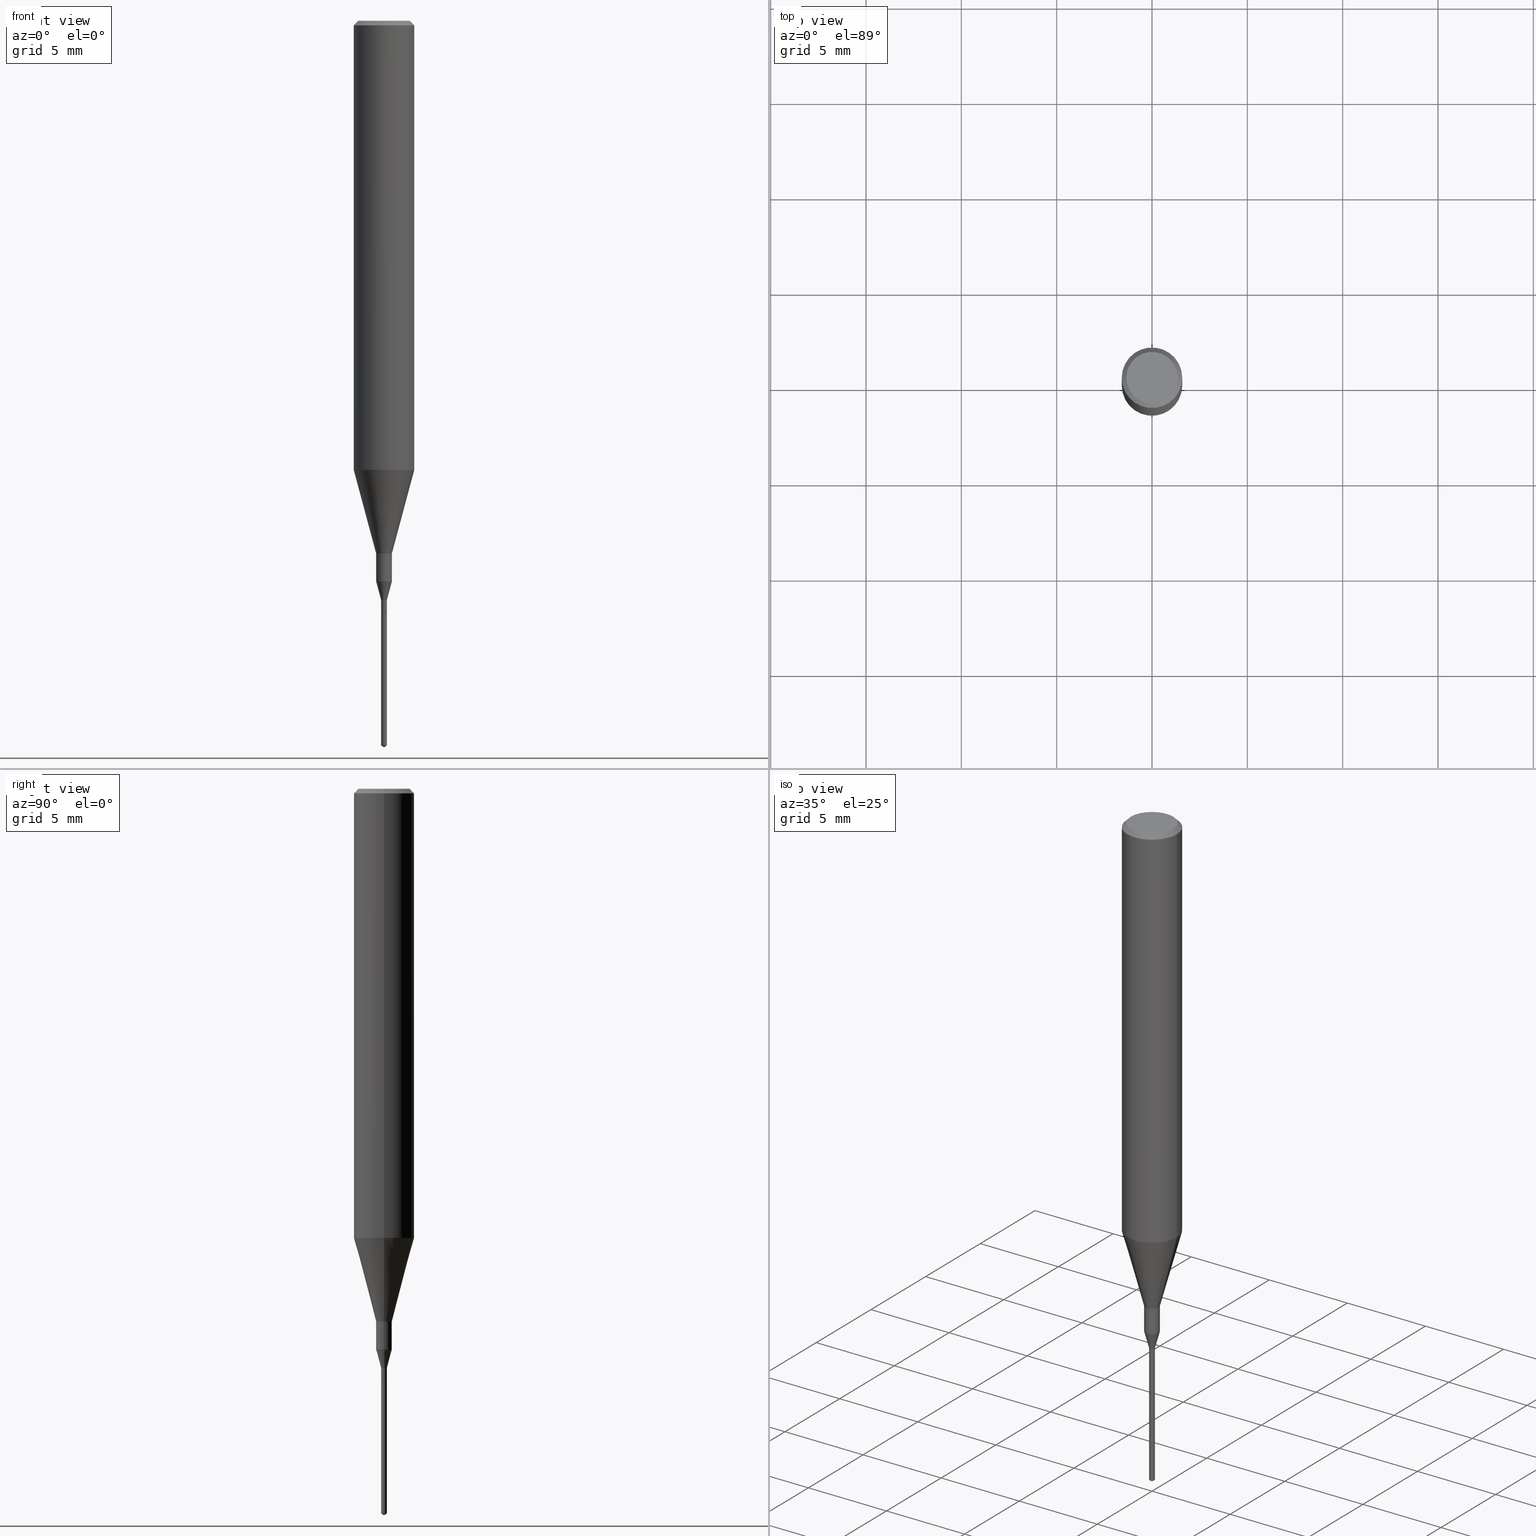
[diagram: canonical four-view strip — front | top / right | iso, engineering-drawing reading convention]
A machine part, canonical four-view strip (front | top / right | iso — engineering-drawing reading convention). The complete STEP part file that produces these views, byte-faithful:
ISO-10303-21;
HEADER;
FILE_DESCRIPTION (( 'STEP AP203' ),
    '1' );
FILE_NAME ('07134.STEP',
    '2024-04-19T13:30:09',
    ( '' ),
    ( '' ),
    'SwSTEP 2.0',
    'SolidWorks 2023',
    '' );
FILE_SCHEMA (( 'CONFIG_CONTROL_DESIGN' ));
ENDSEC;

DATA;
#1 = ORIENTED_EDGE ( 'NONE', *, *, #408, .T. ) ;
#2 = EDGE_CURVE ( 'NONE', #30, #68, #262, .T. ) ;
#3 = CARTESIAN_POINT ( 'NONE',  ( 2.292627005798582813E-31, -3.273263755165473266E-17, -0.009375000000000069042 ) ) ;
#4 = CARTESIAN_POINT ( 'NONE',  ( 0.06250000000000005551, -4.364351673553920638E-16, 3.047610484872462323E-30 ) ) ;
#5 = CARTESIAN_POINT ( 'NONE',  ( 0.000000000000000000, 0.000000000000000000, 0.000000000000000000 ) ) ;
#6 = LINE ( 'NONE', #506, #581 ) ;
#7 = AXIS2_PLACEMENT_3D ( 'NONE', #402, #67, #529 ) ;
#8 = EDGE_CURVE ( 'NONE', #489, #369, #144, .T. ) ;
#9 = LINE ( 'NONE', #56, #107 ) ;
#10 = CARTESIAN_POINT ( 'NONE',  ( 1.415359278996747967E-46, -2.020757941330909984E-32, -5.787680772770392401E-18 ) ) ;
#11 = DATE_TIME_ROLE ( 'creation_date' ) ;
#12 = DIRECTION ( 'NONE',  ( -2.445468806185136597E-29, 3.491481338843145583E-15, 1.000000000000000000 ) ) ;
#13 = DIRECTION ( 'NONE',  ( -2.445468806185136877E-29, 3.491481338843145188E-15, 1.000000000000000000 ) ) ;
#14 = AXIS2_PLACEMENT_3D ( 'NONE', #141, #181, #375 ) ;
#15 = CARTESIAN_POINT ( 'NONE',  ( -9.270139609322808128E-28, 1.320919266452738465E-13, 37.87007874015748143 ) ) ;
#16 = CARTESIAN_POINT ( 'NONE',  ( -0.01625000000000000056, -3.926880586715927397E-15, -1.157773274141662201 ) ) ;
#17 =( NAMED_UNIT ( * ) PLANE_ANGLE_UNIT ( ) SI_UNIT ( $, .RADIAN. ) );
#18 = ORIENTED_EDGE ( 'NONE', *, *, #359, .F. ) ;
#19 = EDGE_CURVE ( 'NONE', #393, #256, #87, .T. ) ;
#20 = DIRECTION ( 'NONE',  ( -2.445468806185136597E-29, 3.491481338843145583E-15, 1.000000000000000000 ) ) ;
#21 = VERTEX_POINT ( 'NONE', #37 ) ;
#22 = EDGE_CURVE ( 'NONE', #296, #68, #51, .T. ) ;
#23 = CALENDAR_DATE ( 2024, 19, 4 ) ;
#24 = EDGE_LOOP ( 'NONE', ( #259, #210, #442, #127 ) ) ;
#25 = ADVANCED_BREP_SHAPE_REPRESENTATION ( '07134', ( #322, #113, #77 ), #572 ) ;
#26 = DIRECTION ( 'NONE',  ( -2.438088387897960049E-29, 3.491481338843145188E-15, 1.000000000000000000 ) ) ;
#27 = ORIENTED_EDGE ( 'NONE', *, *, #576, .F. ) ;
#28 = ADVANCED_FACE ( 'NONE', ( #503 ), #134, .T. ) ;
#29 = CARTESIAN_POINT ( 'NONE',  ( -0.06250000000000000000, -1.191264174815165938E-15, -0.009375000000000069042 ) ) ;
#30 = VERTEX_POINT ( 'NONE', #497 ) ;
#31 = COORDINATED_UNIVERSAL_TIME_OFFSET ( 5, 0, .BEHIND. ) ;
#32 = CARTESIAN_POINT ( 'NONE',  ( 2.983471943545866670E-29, -4.259607233388637524E-15, -1.220000000000000195 ) ) ;
#33 = EDGE_LOOP ( 'NONE', ( #154, #451, #346, #565 ) ) ;
#34 = CARTESIAN_POINT ( 'NONE',  ( -4.119947979831912837E-17, -0.005900000000004259476, -1.220000000000000195 ) ) ;
#35 = ORIENTED_EDGE ( 'NONE', *, *, #464, .T. ) ;
#36 = ADVANCED_FACE ( 'NONE', ( #505 ), #550, .T. ) ;
#37 = CARTESIAN_POINT ( 'NONE',  ( 0.01624999999999999709, -3.954102616239861778E-15, -1.100000000000000089 ) ) ;
#38 = CARTESIAN_POINT ( 'NONE',  ( 2.983471943545866670E-29, -4.259607233388637524E-15, -1.220000000000000195 ) ) ;
#39 = ORIENTED_EDGE ( 'NONE', *, *, #318, .T. ) ;
#40 = FACE_OUTER_BOUND ( 'NONE', #321, .T. ) ;
#41 = ADVANCED_FACE ( 'NONE', ( #93 ), #391, .T. ) ;
#42 = ORIENTED_EDGE ( 'NONE', *, *, #65, .T. ) ;
#43 = CONICAL_SURFACE ( 'NONE', #64, 0.06250000000000000000, 0.7853981633974450594 ) ;
#44 = CC_DESIGN_APPROVAL ( #85, ( #532 ) ) ;
#45 = LINE ( 'NONE', #4, #57 ) ;
#46 = CARTESIAN_POINT ( 'NONE',  ( 2.983471943545866670E-29, -4.259607233388637524E-15, -1.220000000000000195 ) ) ;
#47 = CIRCLE ( 'NONE', #387, 0.005899999999999993791 ) ;
#48 = DIRECTION ( 'NONE',  ( -2.447804433263427602E-29, 3.488136587931395429E-15, 1.000000000000000000 ) ) ;
#49 = DIRECTION ( 'NONE',  ( 1.000000000000000000, -6.982962677686258033E-15, 0.000000000000000000 ) ) ;
#50 = VECTOR ( 'NONE', #13, 39.37007874015748143 ) ;
#51 = CIRCLE ( 'NONE', #241, 0.005900000000000031088 ) ;
#52 = EDGE_CURVE ( 'NONE', #585, #342, #540, .T. ) ;
#53 = CLOSED_SHELL ( 'NONE', ( #230, #254, #436, #282, #41, #195, #164, #491, #305, #520, #257, #562, #28, #152, #36, #362 ) ) ;
#54 = CYLINDRICAL_SURFACE ( 'NONE', #170, 0.005899999999999998995 ) ;
#55 = DIRECTION ( 'NONE',  ( 2.445468806185136597E-29, -3.491481338843145583E-15, -1.000000000000000000 ) ) ;
#56 = CARTESIAN_POINT ( 'NONE',  ( -0.06250000000000000000, 4.037025298037369491E-16, -0.009375000000000069042 ) ) ;
#57 = VECTOR ( 'NONE', #183, 39.37007874015748143 ) ;
#58 = CARTESIAN_POINT ( 'NONE',  ( -4.119947979831236759E-17, -0.005900000000005223115, -1.496454922347737471 ) ) ;
#59 = DIRECTION ( 'NONE',  ( -2.445468806185136877E-29, 3.491481338843145188E-15, 1.000000000000000000 ) ) ;
#60 = DIRECTION ( 'NONE',  ( 0.2588190451025204619, 1.565188264969629067E-15, 0.9659258262890684232 ) ) ;
#61 = CARTESIAN_POINT ( 'NONE',  ( 0.000000000000000000, 0.000000000000000000, 0.000000000000000000 ) ) ;
#62 = DIRECTION ( 'NONE',  ( -0.2588190451025204619, 5.211531920934543942E-15, 0.9659258262890684232 ) ) ;
#63 = ORIENTED_EDGE ( 'NONE', *, *, #198, .T. ) ;
#64 = AXIS2_PLACEMENT_3D ( 'NONE', #430, #55, #293 ) ;
#65 = EDGE_CURVE ( 'NONE', #256, #296, #91, .T. ) ;
#66 = ORIENTED_EDGE ( 'NONE', *, *, #149, .T. ) ;
#67 = DIRECTION ( 'NONE',  ( -2.447804433263427602E-29, 3.488136587931395429E-15, 1.000000000000000000 ) ) ;
#68 = VERTEX_POINT ( 'NONE', #545 ) ;
#69 = VECTOR ( 'NONE', #217, 39.37007874015748143 ) ;
#70 = VERTEX_POINT ( 'NONE', #461 ) ;
#71 = EDGE_CURVE ( 'NONE', #585, #399, #9, .T. ) ;
#72 = CONICAL_SURFACE ( 'NONE', #480, 0.06250000000000011102, 0.2617993877991501850 ) ;
#73 = ORIENTED_EDGE ( 'NONE', *, *, #71, .F. ) ;
#74 = APPROVAL_DATE_TIME ( #573, #85 ) ;
#75 = CARTESIAN_POINT ( 'NONE',  ( -0.005400000000000000286, -4.218588698483481194E-15, -1.220000000000000195 ) ) ;
#76 = ORIENTED_EDGE ( 'NONE', *, *, #209, .F. ) ;
#77 = AXIS2_PLACEMENT_3D ( 'NONE', #61, #341, #512 ) ;
#78 = DIRECTION ( 'NONE',  ( 1.000000000000000000, -6.982962677686306942E-15, 0.000000000000000000 ) ) ;
#79 = EDGE_CURVE ( 'NONE', #70, #309, #239, .T. ) ;
#80 = ORIENTED_EDGE ( 'NONE', *, *, #570, .T. ) ;
#81 = CARTESIAN_POINT ( 'NONE',  ( 0.005400000000000000286, -4.297315231848143579E-15, -1.220000000000000195 ) ) ;
#82 = VECTOR ( 'NONE', #165, 39.37007874015748143 ) ;
#83 = ORIENTED_EDGE ( 'NONE', *, *, #2, .T. ) ;
#84 = FACE_OUTER_BOUND ( 'NONE', #538, .T. ) ;
#85 = APPROVAL ( #286, 'UNSPECIFIED' ) ;
#86 = CARTESIAN_POINT ( 'NONE',  ( -0.06250000000000011102, -2.793884921928740709E-15, -0.9273926501499395458 ) ) ;
#87 = LINE ( 'NONE', #81, #306 ) ;
#88 = CARTESIAN_POINT ( 'NONE',  ( -4.119947979831913453E-17, -0.005900000000004260343, -1.220000000000000195 ) ) ;
#89 = AXIS2_PLACEMENT_3D ( 'NONE', #425, #188, #184 ) ;
#90 = CARTESIAN_POINT ( 'NONE',  ( 2.831298426548267629E-29, -4.042343781276943582E-15, -1.157773274141662201 ) ) ;
#91 = LINE ( 'NONE', #228, #125 ) ;
#92 = DIRECTION ( 'NONE',  ( -2.445468806185136597E-29, 3.491481338843145583E-15, 1.000000000000000000 ) ) ;
#93 = FACE_OUTER_BOUND ( 'NONE', #161, .T. ) ;
#94 = CARTESIAN_POINT ( 'NONE',  ( 2.983471943545866670E-29, -4.259607233388637524E-15, -1.220000000000000195 ) ) ;
#95 = CC_DESIGN_PERSON_AND_ORGANIZATION_ASSIGNMENT ( #556, #103, ( #353 ) ) ;
#96 = CIRCLE ( 'NONE', #89, 0.06250000000000011102 ) ;
#97 = AXIS2_PLACEMENT_3D ( 'NONE', #323, #168, #490 ) ;
#98 = DIRECTION ( 'NONE',  ( 1.000000000000000000, -6.982962677686258033E-15, 0.000000000000000000 ) ) ;
#99 = FACE_OUTER_BOUND ( 'NONE', #433, .T. ) ;
#100 = CARTESIAN_POINT ( 'NONE',  ( 4.192202140987573263E-17, 0.005899999999995739382, -1.220000000000000195 ) ) ;
#101 = CARTESIAN_POINT ( 'NONE',  ( 0.06250000000000011102, -3.674409299134196572E-15, -0.9273926501499395458 ) ) ;
#102 = APPROVAL ( #316, 'UNSPECIFIED' ) ;
#103 = PERSON_AND_ORGANIZATION_ROLE ( 'design_owner' ) ;
#104 = DIRECTION ( 'NONE',  ( -2.445468806185136877E-29, 3.491481338843145188E-15, 1.000000000000000000 ) ) ;
#105 = DESIGN_CONTEXT ( 'detailed design', #124, 'design' ) ;
#106 = DIRECTION ( 'NONE',  ( -2.445468806185136597E-29, 3.491481338843145583E-15, 1.000000000000000000 ) ) ;
#107 = VECTOR ( 'NONE', #500, 39.37007874015748143 ) ;
#108 = ORIENTED_EDGE ( 'NONE', *, *, #19, .T. ) ;
#109 = COORDINATED_UNIVERSAL_TIME_OFFSET ( 5, 0, .BEHIND. ) ;
#110 = AXIS2_PLACEMENT_3D ( 'NONE', #354, #443, #350 ) ;
#111 = ORIENTED_EDGE ( 'NONE', *, *, #295, .T. ) ;
#112 = ADVANCED_FACE ( 'NONE', ( #186 ), #54, .T. ) ;
#113 = MANIFOLD_SOLID_BREP ( 'Body-Move/Copy2[2]', #53 ) ;
#114 = APPROVAL_DATE_TIME ( #392, #587 ) ;
#115 = CARTESIAN_POINT ( 'NONE',  ( 4.192202140988254888E-17, 0.005899999999995740249, -1.220000000000000195 ) ) ;
#116 = ORIENTED_EDGE ( 'NONE', *, *, #577, .T. ) ;
#117 = FACE_OUTER_BOUND ( 'NONE', #531, .T. ) ;
#118 = ORIENTED_EDGE ( 'NONE', *, *, #385, .T. ) ;
#119 = APPROVAL_DATE_TIME ( #519, #102 ) ;
#120 = ORIENTED_EDGE ( 'NONE', *, *, #8, .F. ) ;
#121 = CC_DESIGN_DATE_AND_TIME_ASSIGNMENT ( #176, #413, ( #386 ) ) ;
#122 = VERTEX_POINT ( 'NONE', #237 ) ;
#123 = LOCAL_TIME ( 9, 30, 9.000000000000000000, #109 ) ;
#124 = APPLICATION_CONTEXT ( 'configuration controlled 3d designs of mechanical parts and assemblies' ) ;
#125 = VECTOR ( 'NONE', #59, 39.37007874015748143 ) ;
#126 = ORIENTED_EDGE ( 'NONE', *, *, #444, .F. ) ;
#127 = ORIENTED_EDGE ( 'NONE', *, *, #515, .F. ) ;
#128 = PERSON ( 'UNSPECIFIED', 'UNSPECIFIED', 'UNSPECIFIED', ('UNSPECIFIED'), ('UNSPECIFIED'), ('UNSPECIFIED') ) ;
#129 = CYLINDRICAL_SURFACE ( 'NONE', #153, 0.01624999999999999709 ) ;
#130 = ORIENTED_EDGE ( 'NONE', *, *, #401, .T. ) ;
#131 = EDGE_CURVE ( 'NONE', #207, #528, #96, .T. ) ;
#132 = DIRECTION ( 'NONE',  ( 1.000000000000000000, -6.982962677686296687E-15, 0.000000000000000000 ) ) ;
#133 = DIRECTION ( 'NONE',  ( 1.000000000000000000, -6.982962677686259611E-15, 0.000000000000000000 ) ) ;
#134 = CONICAL_SURFACE ( 'NONE', #398, 0.06250000000000011102, 0.2617993877991501850 ) ;
#135 = DIRECTION ( 'NONE',  ( -2.445468806185136597E-29, 3.491481338843145583E-15, 1.000000000000000000 ) ) ;
#136 = VECTOR ( 'NONE', #487, 39.37007874015748143 ) ;
#137 = VECTOR ( 'NONE', #48, 39.37007874015748143 ) ;
#138 = LINE ( 'NONE', #467, #468 ) ;
#139 = ADVANCED_FACE ( 'NONE', ( #192 ), #431, .T. ) ;
#140 = DIRECTION ( 'NONE',  ( -2.445468806185136597E-29, 3.491481338843145583E-15, 1.000000000000000000 ) ) ;
#141 = CARTESIAN_POINT ( 'NONE',  ( 2.983471943545866670E-29, -4.259607233388637524E-15, -1.220000000000000195 ) ) ;
#142 = CARTESIAN_POINT ( 'NONE',  ( 2.267909797027042920E-29, -3.237974131778804114E-15, -0.9273926501499395458 ) ) ;
#143 = LINE ( 'NONE', #334, #276 ) ;
#144 = CIRCLE ( 'NONE', #97, 0.005900000000000000730 ) ;
#145 = DATE_AND_TIME ( #423, #199 ) ;
#146 = CYLINDRICAL_SURFACE ( 'NONE', #481, 0.06250000000000005551 ) ;
#147 = FACE_OUTER_BOUND ( 'NONE', #435, .T. ) ;
#148 = CIRCLE ( 'NONE', #472, 0.05312499999999999861 ) ;
#149 = EDGE_CURVE ( 'NONE', #493, #489, #416, .T. ) ;
#150 = CARTESIAN_POINT ( 'NONE',  ( 0.000000000000000000, 0.000000000000000000, 0.000000000000000000 ) ) ;
#151 = FACE_OUTER_BOUND ( 'NONE', #513, .T. ) ;
#152 = ADVANCED_FACE ( 'NONE', ( #553 ), #146, .T. ) ;
#153 = AXIS2_PLACEMENT_3D ( 'NONE', #320, #368, #269 ) ;
#154 = ORIENTED_EDGE ( 'NONE', *, *, #189, .F. ) ;
#155 = ORIENTED_EDGE ( 'NONE', *, *, #458, .F. ) ;
#156 = DIRECTION ( 'NONE',  ( 6.982962677686265922E-15, 1.000000000000000000, -3.488136587931395429E-15 ) ) ;
#157 = PRODUCT_DEFINITION_SHAPE ( 'NONE', 'NONE',  #266 ) ;
#158 = VECTOR ( 'NONE', #474, 39.37007874015748143 ) ;
#159 = VERTEX_POINT ( 'NONE', #508 ) ;
#160 = CARTESIAN_POINT ( 'NONE',  ( 2.267909797027042920E-29, -3.237974131778804114E-15, -0.9273926501499395458 ) ) ;
#161 = EDGE_LOOP ( 'NONE', ( #267, #521, #406, #205 ) ) ;
#162 = CARTESIAN_POINT ( 'NONE',  ( 0.06250000000000000000, -4.615137624123754923E-16, -0.009375000000000069042 ) ) ;
#163 = ORIENTED_EDGE ( 'NONE', *, *, #131, .F. ) ;
#164 = ADVANCED_FACE ( 'NONE', ( #415 ), #364, .T. ) ;
#165 = DIRECTION ( 'NONE',  ( -2.447804433263427602E-29, 3.488136587931395429E-15, 1.000000000000000000 ) ) ;
#166 = ORIENTED_EDGE ( 'NONE', *, *, #576, .T. ) ;
#167 = CARTESIAN_POINT ( 'NONE',  ( 4.192202140988249958E-17, 0.005899999999994775743, -1.496454922347737471 ) ) ;
#168 = DIRECTION ( 'NONE',  ( -2.447804433263427602E-29, 3.488136587931395429E-15, 1.000000000000000000 ) ) ;
#169 = AXIS2_PLACEMENT_3D ( 'NONE', #457, #511, #49 ) ;
#170 = AXIS2_PLACEMENT_3D ( 'NONE', #232, #283, #462 ) ;
#171 = ADVANCED_FACE ( 'NONE', ( #326 ), #453, .T. ) ;
#172 = ORIENTED_EDGE ( 'NONE', *, *, #499, .F. ) ;
#173 = AXIS2_PLACEMENT_3D ( 'NONE', #287, #466, #132 ) ;
#174 = ORIENTED_EDGE ( 'NONE', *, *, #324, .F. ) ;
#175 = DIRECTION ( 'NONE',  ( 1.000000000000000000, -6.982962677686296687E-15, 0.000000000000000000 ) ) ;
#176 = DATE_AND_TIME ( #270, #312 ) ;
#177 = ORIENTED_EDGE ( 'NONE', *, *, #530, .T. ) ;
#178 = CARTESIAN_POINT ( 'NONE',  ( 7.076796394983739835E-47, -1.010378970665454992E-32, -2.893840386385196200E-18 ) ) ;
#179 = DIRECTION ( 'NONE',  ( -2.445468806185136597E-29, 3.491481338843145583E-15, 1.000000000000000000 ) ) ;
#180 = DIRECTION ( 'NONE',  ( -2.445468806185136597E-29, 3.491481338843145583E-15, 1.000000000000000000 ) ) ;
#181 = DIRECTION ( 'NONE',  ( -2.445468806185136597E-29, 3.491481338843145583E-15, 1.000000000000000000 ) ) ;
#182 = EDGE_CURVE ( 'NONE', #399, #122, #555, .T. ) ;
#183 = DIRECTION ( 'NONE',  ( -2.445468806185136877E-29, 3.491481338843145188E-15, 1.000000000000000000 ) ) ;
#184 = DIRECTION ( 'NONE',  ( 1.000000000000000000, -6.982962677686265922E-15, 0.000000000000000000 ) ) ;
#185 = CARTESIAN_POINT ( 'NONE',  ( 0.000000000000000000, 0.000000000000000000, 0.000000000000000000 ) ) ;
#186 = FACE_OUTER_BOUND ( 'NONE', #219, .T. ) ;
#187 = DIRECTION ( 'NONE',  ( -6.982962677686265922E-15, -1.000000000000000000, 0.000000000000000000 ) ) ;
#188 = DIRECTION ( 'NONE',  ( -2.445468806185136597E-29, 3.491481338843145583E-15, 1.000000000000000000 ) ) ;
#189 = EDGE_CURVE ( 'NONE', #314, #222, #541, .T. ) ;
#190 = DIRECTION ( 'NONE',  ( -0.7071067811865180408, 7.493145998870246875E-15, 0.7071067811865769936 ) ) ;
#191 = DIRECTION ( 'NONE',  ( -6.982962677686265133E-15, -1.000000000000000000, 0.000000000000000000 ) ) ;
#192 = FACE_OUTER_BOUND ( 'NONE', #253, .T. ) ;
#193 = DIRECTION ( 'NONE',  ( -2.445468806185136597E-29, 3.491481338843145583E-15, 1.000000000000000000 ) ) ;
#194 = AXIS2_PLACEMENT_3D ( 'NONE', #15, #383, #456 ) ;
#195 = ADVANCED_FACE ( 'NONE', ( #291 ), #557, .T. ) ;
#196 = APPROVAL_PERSON_ORGANIZATION ( #250, #102, #488 ) ;
#197 = ORIENTED_EDGE ( 'NONE', *, *, #182, .F. ) ;
#198 = EDGE_CURVE ( 'NONE', #493, #309, #246, .T. ) ;
#199 = LOCAL_TIME ( 9, 30, 9.000000000000000000, #236 ) ;
#200 = EDGE_LOOP ( 'NONE', ( #397, #111, #108, #251 ) ) ;
#201 = VECTOR ( 'NONE', #60, 39.37007874015748854 ) ;
#202 = EDGE_CURVE ( 'NONE', #70, #493, #6, .T. ) ;
#203 = CARTESIAN_POINT ( 'NONE',  ( 2.982249209142773869E-29, -4.257861492719216809E-15, -1.219500000000000028 ) ) ;
#204 = COORDINATED_UNIVERSAL_TIME_OFFSET ( 5, 0, .BEHIND. ) ;
#205 = ORIENTED_EDGE ( 'NONE', *, *, #351, .F. ) ;
#206 = AXIS2_PLACEMENT_3D ( 'NONE', #574, #365, #274 ) ;
#207 = VERTEX_POINT ( 'NONE', #101 ) ;
#208 = DIRECTION ( 'NONE',  ( 1.000000000000000000, -6.982962677686265922E-15, 0.000000000000000000 ) ) ;
#209 = EDGE_CURVE ( 'NONE', #342, #585, #148, .T. ) ;
#210 = ORIENTED_EDGE ( 'NONE', *, *, #373, .T. ) ;
#211 = VECTOR ( 'NONE', #62, 39.37007874015748854 ) ;
#212 = LINE ( 'NONE', #34, #82 ) ;
#213 = ORIENTED_EDGE ( 'NONE', *, *, #202, .T. ) ;
#214 = CIRCLE ( 'NONE', #485, 0.01625000000000000056 ) ;
#215 = AXIS2_PLACEMENT_3D ( 'NONE', #220, #537, #496 ) ;
#216 = PLANE ( 'NONE',  #421 ) ;
#217 = DIRECTION ( 'NONE',  ( -2.445468806185136877E-29, 3.491481338843145188E-15, 1.000000000000000000 ) ) ;
#218 = ORIENTED_EDGE ( 'NONE', *, *, #422, .T. ) ;
#219 = EDGE_LOOP ( 'NONE', ( #568, #63, #35, #120 ) ) ;
#220 = CARTESIAN_POINT ( 'NONE',  ( -9.270139609322808128E-28, 1.320919266452738465E-13, 37.87007874015748143 ) ) ;
#221 = DIMENSIONAL_EXPONENTS ( 1.000000000000000000, 0.000000000000000000, 0.000000000000000000, 0.000000000000000000, 0.000000000000000000, 0.000000000000000000, 0.000000000000000000 ) ;
#222 = VERTEX_POINT ( 'NONE', #329 ) ;
#223 = AXIS2_PLACEMENT_3D ( 'NONE', #412, #179, #327 ) ;
#224 = DIRECTION ( 'NONE',  ( -2.447804433263427602E-29, 3.488136587931395429E-15, 1.000000000000000000 ) ) ;
#225 = DIRECTION ( 'NONE',  ( -1.000000000000000000, 6.982962677686265922E-15, -4.876176775795935793E-29 ) ) ;
#226 = CC_DESIGN_PERSON_AND_ORGANIZATION_ASSIGNMENT ( #584, #313, ( #532 ) ) ;
#227 = AXIS2_PLACEMENT_3D ( 'NONE', #94, #281, #288 ) ;
#228 = CARTESIAN_POINT ( 'NONE',  ( 0.005900000000000012006, -4.119947979834905578E-17, 2.876944297719608080E-31 ) ) ;
#229 = DIRECTION ( 'NONE',  ( 1.000000000000000000, -6.982962677686258033E-15, 0.000000000000000000 ) ) ;
#230 = ADVANCED_FACE ( 'NONE', ( #147 ), #43, .T. ) ;
#231 = PERSON_AND_ORGANIZATION ( #128, #414 ) ;
#232 = CARTESIAN_POINT ( 'NONE',  ( 2.983471943545866670E-29, -4.259607233388637524E-15, -1.220000000000000195 ) ) ;
#233 = DIRECTION ( 'NONE',  ( -2.447804433263427602E-29, 3.488136587931395429E-15, 1.000000000000000000 ) ) ;
#234 = CC_DESIGN_APPROVAL ( #102, ( #386 ) ) ;
#235 = AXIS2_PLACEMENT_3D ( 'NONE', #160, #522, #308 ) ;
#236 = COORDINATED_UNIVERSAL_TIME_OFFSET ( 5, 0, .BEHIND. ) ;
#237 = CARTESIAN_POINT ( 'NONE',  ( 0.06250000000000000000, -4.691678049070464390E-16, -0.009375000000000069042 ) ) ;
#238 = CARTESIAN_POINT ( 'NONE',  ( 0.01624999999999999709, -1.134731435124018242E-16, 7.923787260668394963E-31 ) ) ;
#239 = LINE ( 'NONE', #428, #460 ) ;
#240 = CARTESIAN_POINT ( 'NONE',  ( 2.292627005798582813E-31, -3.273263755165473266E-17, -0.009375000000000069042 ) ) ;
#241 = AXIS2_PLACEMENT_3D ( 'NONE', #405, #140, #331 ) ;
#242 =( CONVERSION_BASED_UNIT ( 'INCH', #469 ) LENGTH_UNIT ( ) NAMED_UNIT ( #221 ) );
#243 = DIRECTION ( 'NONE',  ( 6.090539988449805257E-15, 0.8571673007021175517, 0.5150380749100452737 ) ) ;
#244 = CIRCLE ( 'NONE', #7, 0.005899999999999998995 ) ;
#245 = ORIENTED_EDGE ( 'NONE', *, *, #131, .T. ) ;
#246 = CIRCLE ( 'NONE', #527, 0.005899999999999998995 ) ;
#247 = ORIENTED_EDGE ( 'NONE', *, *, #351, .T. ) ;
#248 = EDGE_CURVE ( 'NONE', #222, #528, #143, .T. ) ;
#249 = PLANE ( 'NONE',  #264 ) ;
#250 = PERSON_AND_ORGANIZATION ( #128, #414 ) ;
#251 = ORIENTED_EDGE ( 'NONE', *, *, #408, .F. ) ;
#252 = DIRECTION ( 'NONE',  ( -2.445468806185136597E-29, 3.491481338843145583E-15, 1.000000000000000000 ) ) ;
#253 = EDGE_LOOP ( 'NONE', ( #265, #213, #395 ) ) ;
#254 = ADVANCED_FACE ( 'NONE', ( #546 ), #501, .T. ) ;
#255 = APPROVAL_PERSON_ORGANIZATION ( #380, #85, #465 ) ;
#256 = VERTEX_POINT ( 'NONE', #279 ) ;
#257 = ADVANCED_FACE ( 'NONE', ( #99 ), #533, .T. ) ;
#258 = CARTESIAN_POINT ( 'NONE',  ( -0.06250000000000005551, 4.440892098500630106E-16, -3.074334431409318916E-30 ) ) ;
#259 = ORIENTED_EDGE ( 'NONE', *, *, #248, .F. ) ;
#260 = AXIS2_PLACEMENT_3D ( 'NONE', #178, #410, #225 ) ;
#261 = DIRECTION ( 'NONE',  ( -2.445468806185136597E-29, 3.491481338843145583E-15, 1.000000000000000000 ) ) ;
#262 = LINE ( 'NONE', #486, #69 ) ;
#263 = EDGE_CURVE ( 'NONE', #68, #314, #509, .T. ) ;
#264 = AXIS2_PLACEMENT_3D ( 'NONE', #32, #567, #156 ) ;
#265 = ORIENTED_EDGE ( 'NONE', *, *, #79, .F. ) ;
#266 = PRODUCT_DEFINITION ( 'UNKNOWN', '', #532, #105 ) ;
#267 = ORIENTED_EDGE ( 'NONE', *, *, #22, .T. ) ;
#268 = CIRCLE ( 'NONE', #14, 0.005400000000000000286 ) ;
#269 = DIRECTION ( 'NONE',  ( 1.000000000000000000, -6.982962677686267499E-15, 4.876176775795936353E-29 ) ) ;
#270 = CALENDAR_DATE ( 2024, 19, 4 ) ;
#271 = AXIS2_PLACEMENT_3D ( 'NONE', #90, #419, #98 ) ;
#272 = EDGE_LOOP ( 'NONE', ( #245, #218, #18, #349 ) ) ;
#273 = CARTESIAN_POINT ( 'NONE',  ( 2.690015686803650369E-29, -3.840629472727460101E-15, -1.100000000000000089 ) ) ;
#274 = DIRECTION ( 'NONE',  ( 1.000000000000000000, -6.982962677686266711E-15, 4.876176775795935793E-29 ) ) ;
#275 = VECTOR ( 'NONE', #299, 39.37007874015748143 ) ;
#276 = VECTOR ( 'NONE', #432, 39.37007874015748143 ) ;
#277 = DIRECTION ( 'NONE',  ( 2.445468806185136597E-29, -3.491481338843145583E-15, -1.000000000000000000 ) ) ;
#278 = CARTESIAN_POINT ( 'NONE',  ( 1.415359278996747967E-46, -2.020757941330909984E-32, -5.787680772770392401E-18 ) ) ;
#279 = CARTESIAN_POINT ( 'NONE',  ( 0.005899999999999993791, -4.299060972517565082E-15, -1.219500000000000028 ) ) ;
#280 = DIRECTION ( 'NONE',  ( -2.445468806185136597E-29, 3.491481338843145583E-15, 1.000000000000000000 ) ) ;
#281 = DIRECTION ( 'NONE',  ( -2.445468806185136597E-29, 3.491481338843145583E-15, 1.000000000000000000 ) ) ;
#282 = ADVANCED_FACE ( 'NONE', ( #151 ), #339, .T. ) ;
#283 = DIRECTION ( 'NONE',  ( -2.447804433263427602E-29, 3.488136587931395429E-15, 1.000000000000000000 ) ) ;
#284 = CARTESIAN_POINT ( 'NONE',  ( -0.01625000000000000056, -3.926880586715927397E-15, -1.157773274141662201 ) ) ;
#285 = CIRCLE ( 'NONE', #411, 0.005400000000000000286 ) ;
#286 = APPROVAL_STATUS ( 'not_yet_approved' ) ;
#287 = CARTESIAN_POINT ( 'NONE',  ( 2.983471943545866670E-29, -4.259607233388637524E-15, -1.220000000000000195 ) ) ;
#288 = DIRECTION ( 'NONE',  ( 1.000000000000000000, -6.982962677686296687E-15, 0.000000000000000000 ) ) ;
#289 = APPLICATION_PROTOCOL_DEFINITION ( 'international standard', 'config_control_design', 1994, #124 ) ;
#290 = CONICAL_SURFACE ( 'NONE', #227, 0.005400000000000000286, 0.7853981633974066456 ) ;
#291 = FACE_OUTER_BOUND ( 'NONE', #358, .T. ) ;
#292 = AXIS2_PLACEMENT_3D ( 'NONE', #558, #542, #229 ) ;
#293 = DIRECTION ( 'NONE',  ( -1.000000000000000000, 6.982962677686266711E-15, 0.000000000000000000 ) ) ;
#294 = AXIS2_PLACEMENT_3D ( 'NONE', #278, #280, #548 ) ;
#295 = EDGE_CURVE ( 'NONE', #388, #393, #268, .T. ) ;
#296 = VERTEX_POINT ( 'NONE', #332 ) ;
#297 = AXIS2_PLACEMENT_3D ( 'NONE', #185, #92, #417 ) ;
#298 =( NAMED_UNIT ( * ) SI_UNIT ( $, .STERADIAN. ) SOLID_ANGLE_UNIT ( ) );
#299 = DIRECTION ( 'NONE',  ( 0.7071067811865452413, -7.319954787623248157E-15, -0.7071067811865497932 ) ) ;
#300 = ORIENTED_EDGE ( 'NONE', *, *, #209, .T. ) ;
#301 = MECHANICAL_CONTEXT ( 'NONE', #311, 'mechanical' ) ;
#302 = DIRECTION ( 'NONE',  ( 1.000000000000000000, -6.982962677686258033E-15, 0.000000000000000000 ) ) ;
#303 = SHAPE_DEFINITION_REPRESENTATION ( #157, #25 ) ;
#304 = ORIENTED_EDGE ( 'NONE', *, *, #340, .T. ) ;
#305 = ADVANCED_FACE ( 'NONE', ( #372 ), #290, .T. ) ;
#306 = VECTOR ( 'NONE', #450, 39.37007874015748143 ) ;
#307 = CALENDAR_DATE ( 2024, 19, 4 ) ;
#308 = DIRECTION ( 'NONE',  ( 1.000000000000000000, -6.982962677686265922E-15, 0.000000000000000000 ) ) ;
#309 = VERTEX_POINT ( 'NONE', #58 ) ;
#310 = VECTOR ( 'NONE', #104, 39.37007874015748143 ) ;
#311 = APPLICATION_CONTEXT ( 'configuration controlled 3d designs of mechanical parts and assemblies' ) ;
#312 = LOCAL_TIME ( 9, 30, 9.000000000000000000, #547 ) ;
#313 = PERSON_AND_ORGANIZATION_ROLE ( 'creator' ) ;
#314 = VERTEX_POINT ( 'NONE', #16 ) ;
#315 = AXIS2_PLACEMENT_3D ( 'NONE', #424, #551, #191 ) ;
#316 = APPROVAL_STATUS ( 'not_yet_approved' ) ;
#317 = ORIENTED_EDGE ( 'NONE', *, *, #544, .F. ) ;
#318 = EDGE_CURVE ( 'NONE', #159, #314, #575, .T. ) ;
#319 = ORIENTED_EDGE ( 'NONE', *, *, #515, .T. ) ;
#320 = CARTESIAN_POINT ( 'NONE',  ( 0.000000000000000000, 0.000000000000000000, 0.000000000000000000 ) ) ;
#321 = EDGE_LOOP ( 'NONE', ( #475, #471, #409 ) ) ;
#322 = MANIFOLD_SOLID_BREP ( 'Body-Move/Copy2[1]', #552 ) ;
#323 = CARTESIAN_POINT ( 'NONE',  ( 2.983471943545866670E-29, -4.259607233388637524E-15, -1.220000000000000195 ) ) ;
#324 = EDGE_CURVE ( 'NONE', #159, #21, #426, .T. ) ;
#325 = PERSON_AND_ORGANIZATION_ROLE ( 'classification_officer' ) ;
#326 = FACE_OUTER_BOUND ( 'NONE', #360, .T. ) ;
#327 = DIRECTION ( 'NONE',  ( 1.000000000000000000, -6.982962677686259611E-15, 0.000000000000000000 ) ) ;
#328 = DIRECTION ( 'NONE',  ( -1.000000000000000000, 6.982962677686266711E-15, 0.000000000000000000 ) ) ;
#329 = CARTESIAN_POINT ( 'NONE',  ( -0.01624999999999999709, -3.826023432441185262E-15, -1.100000000000000089 ) ) ;
#330 = PERSON_AND_ORGANIZATION_ROLE ( 'design_supplier' ) ;
#331 = DIRECTION ( 'NONE',  ( 1.000000000000000000, -6.982962677686262766E-15, 0.000000000000000000 ) ) ;
#332 = CARTESIAN_POINT ( 'NONE',  ( 0.005900000000000031088, -4.218407753590289251E-15, -1.196400000000000130 ) ) ;
#333 = DIRECTION ( 'NONE',  ( 1.000000000000000000, -6.982962677686265922E-15, 0.000000000000000000 ) ) ;
#334 = CARTESIAN_POINT ( 'NONE',  ( -0.06250000000000011102, -2.793884921928740709E-15, -0.9273926501499395458 ) ) ;
#335 = DIRECTION ( 'NONE',  ( 1.000000000000000000, -6.982962677686306942E-15, 0.000000000000000000 ) ) ;
#336 = DIRECTION ( 'NONE',  ( 1.000000000000000000, -6.982962677686266711E-15, 4.876176775795935232E-29 ) ) ;
#337 = CARTESIAN_POINT ( 'NONE',  ( 0.01625000000000000056, -4.155816924789345258E-15, -1.157773274141662201 ) ) ;
#338 = DIRECTION ( 'NONE',  ( -2.445468806185136597E-29, 3.491481338843145583E-15, 1.000000000000000000 ) ) ;
#339 = CYLINDRICAL_SURFACE ( 'NONE', #588, 0.01624999999999999709 ) ;
#340 = EDGE_CURVE ( 'NONE', #388, #30, #138, .T. ) ;
#341 = DIRECTION ( 'NONE',  ( 0.000000000000000000, 0.000000000000000000, 1.000000000000000000 ) ) ;
#342 = VERTEX_POINT ( 'NONE', #382 ) ;
#343 = AXIS2_PLACEMENT_3D ( 'NONE', #378, #277, #328 ) ;
#344 = PERSON_AND_ORGANIZATION ( #128, #414 ) ;
#345 = AXIS2_PLACEMENT_3D ( 'NONE', #273, #370, #133 ) ;
#346 = ORIENTED_EDGE ( 'NONE', *, *, #324, .T. ) ;
#347 = PERSON_AND_ORGANIZATION ( #128, #414 ) ;
#348 = FACE_OUTER_BOUND ( 'NONE', #390, .T. ) ;
#349 = ORIENTED_EDGE ( 'NONE', *, *, #530, .F. ) ;
#350 = DIRECTION ( 'NONE',  ( 1.000000000000000000, -6.982962677686262766E-15, 0.000000000000000000 ) ) ;
#351 = EDGE_CURVE ( 'NONE', #296, #159, #554, .T. ) ;
#352 = ORIENTED_EDGE ( 'NONE', *, *, #295, .F. ) ;
#353 = PRODUCT ( '07134', '07134', '', ( #301 ) ) ;
#354 = CARTESIAN_POINT ( 'NONE',  ( 2.925758879719897427E-29, -4.177208273791940189E-15, -1.196400000000000130 ) ) ;
#355 = ORIENTED_EDGE ( 'NONE', *, *, #359, .T. ) ;
#356 = CYLINDRICAL_SURFACE ( 'NONE', #206, 0.005900000000000012006 ) ;
#357 = LOCAL_TIME ( 9, 30, 9.000000000000000000, #204 ) ;
#358 = EDGE_LOOP ( 'NONE', ( #116, #83, #439, #478 ) ) ;
#359 = EDGE_CURVE ( 'NONE', #122, #399, #438, .T. ) ;
#360 = EDGE_LOOP ( 'NONE', ( #130, #66, #27, #366 ) ) ;
#361 = DIRECTION ( 'NONE',  ( -2.445468806185136597E-29, 3.491481338843145583E-15, 1.000000000000000000 ) ) ;
#362 = ADVANCED_FACE ( 'NONE', ( #84 ), #448, .F. ) ;
#363 = EDGE_LOOP ( 'NONE', ( #536, #319, #177, #197 ) ) ;
#364 = CONICAL_SURFACE ( 'NONE', #173, 0.005400000000000000286, 0.7853981633974066456 ) ;
#365 = DIRECTION ( 'NONE',  ( -2.445468806185136597E-29, 3.491481338843145583E-15, 1.000000000000000000 ) ) ;
#366 = ORIENTED_EDGE ( 'NONE', *, *, #464, .F. ) ;
#367 = ADVANCED_FACE ( 'NONE', ( #40 ), #400, .T. ) ;
#368 = DIRECTION ( 'NONE',  ( -2.445468806185136597E-29, 3.491481338843145583E-15, 1.000000000000000000 ) ) ;
#369 = VERTEX_POINT ( 'NONE', #88 ) ;
#370 = DIRECTION ( 'NONE',  ( -2.445468806185136597E-29, 3.491481338843145583E-15, 1.000000000000000000 ) ) ;
#371 = DIRECTION ( 'NONE',  ( 1.000000000000000000, -6.982962677686266711E-15, 0.000000000000000000 ) ) ;
#372 = FACE_OUTER_BOUND ( 'NONE', #200, .T. ) ;
#373 = EDGE_CURVE ( 'NONE', #222, #21, #449, .T. ) ;
#374 = DIRECTION ( 'NONE',  ( -6.982962677686265922E-15, -1.000000000000000000, 0.000000000000000000 ) ) ;
#375 = DIRECTION ( 'NONE',  ( 1.000000000000000000, -6.982962677686296687E-15, 0.000000000000000000 ) ) ;
#376 = CIRCLE ( 'NONE', #110, 0.005900000000000031088 ) ;
#377 = CC_DESIGN_DATE_AND_TIME_ASSIGNMENT ( #145, #11, ( #266 ) ) ;
#378 = CARTESIAN_POINT ( 'NONE',  ( 2.292627005798582813E-31, -3.273263755165473266E-17, -0.009375000000000069042 ) ) ;
#379 = DIRECTION ( 'NONE',  ( -2.445468806185136597E-29, 3.491481338843145583E-15, 1.000000000000000000 ) ) ;
#380 = PERSON_AND_ORGANIZATION ( #128, #414 ) ;
#381 = DIRECTION ( 'NONE',  ( -5.985567269335967312E-15, -0.8571673007021139989, 0.5150380749100511579 ) ) ;
#382 = CARTESIAN_POINT ( 'NONE',  ( 0.05312499999999999861, -4.129888592719939842E-16, -5.787680772767651417E-18 ) ) ;
#383 = DIRECTION ( 'NONE',  ( -2.447804433263427602E-29, 3.488136587931395429E-15, 1.000000000000000000 ) ) ;
#384 = DIRECTION ( 'NONE',  ( 1.000000000000000000, -6.982962677686266711E-15, 0.000000000000000000 ) ) ;
#385 = EDGE_CURVE ( 'NONE', #342, #122, #579, .T. ) ;
#386 = SECURITY_CLASSIFICATION ( '', '', #502 ) ;
#387 = AXIS2_PLACEMENT_3D ( 'NONE', #434, #20, #335 ) ;
#388 = VERTEX_POINT ( 'NONE', #75 ) ;
#389 = APPROVAL_PERSON_ORGANIZATION ( #344, #587, #514 ) ;
#390 = EDGE_LOOP ( 'NONE', ( #80, #534, #163, #172 ) ) ;
#391 = CONICAL_SURFACE ( 'NONE', #271, 0.01625000000000000056, 0.2617993877991491303 ) ;
#392 = DATE_AND_TIME ( #23, #123 ) ;
#393 = VERTEX_POINT ( 'NONE', #479 ) ;
#394 = LINE ( 'NONE', #258, #136 ) ;
#395 = ORIENTED_EDGE ( 'NONE', *, *, #401, .F. ) ;
#396 = FACE_OUTER_BOUND ( 'NONE', #504, .T. ) ;
#397 = ORIENTED_EDGE ( 'NONE', *, *, #340, .F. ) ;
#398 = AXIS2_PLACEMENT_3D ( 'NONE', #142, #12, #333 ) ;
#399 = VERTEX_POINT ( 'NONE', #29 ) ;
#400 = CONICAL_SURFACE ( 'NONE', #215, 65.52281426576945478, 1.029744258676661417 ) ;
#401 = EDGE_CURVE ( 'NONE', #309, #493, #244, .T. ) ;
#402 = CARTESIAN_POINT ( 'NONE',  ( 3.660179528066154964E-29, -5.223919762943513709E-15, -1.496454922347737471 ) ) ;
#403 = EDGE_LOOP ( 'NONE', ( #561, #473, #589, #452 ) ) ;
#404 = CC_DESIGN_SECURITY_CLASSIFICATION ( #386, ( #532 ) ) ;
#405 = CARTESIAN_POINT ( 'NONE',  ( 2.925758879719897427E-29, -4.177208273791940189E-15, -1.196400000000000130 ) ) ;
#406 = ORIENTED_EDGE ( 'NONE', *, *, #318, .F. ) ;
#407 = AXIS2_PLACEMENT_3D ( 'NONE', #150, #338, #459 ) ;
#408 = EDGE_CURVE ( 'NONE', #30, #256, #580, .T. ) ;
#409 = ORIENTED_EDGE ( 'NONE', *, *, #198, .F. ) ;
#410 = DIRECTION ( 'NONE',  ( 2.438088387897960049E-29, -3.491481338843145188E-15, -1.000000000000000000 ) ) ;
#411 = AXIS2_PLACEMENT_3D ( 'NONE', #38, #361, #175 ) ;
#412 = CARTESIAN_POINT ( 'NONE',  ( 2.690015686803650369E-29, -3.840629472727460101E-15, -1.100000000000000089 ) ) ;
#413 = DATE_TIME_ROLE ( 'classification_date' ) ;
#414 = ORGANIZATION ( 'UNSPECIFIED', 'UNSPECIFIED', '' ) ;
#415 = FACE_OUTER_BOUND ( 'NONE', #578, .T. ) ;
#416 = LINE ( 'NONE', #100, #137 ) ;
#417 = DIRECTION ( 'NONE',  ( 1.000000000000000000, -6.982962677686266711E-15, 4.876176775795935232E-29 ) ) ;
#418 = ADVANCED_FACE ( 'NONE', ( #437 ), #249, .F. ) ;
#419 = DIRECTION ( 'NONE',  ( -2.445468806185136597E-29, 3.491481338843145583E-15, 1.000000000000000000 ) ) ;
#420 = CARTESIAN_POINT ( 'NONE',  ( 3.660179528066154964E-29, -5.223919762943513709E-15, -1.496454922347737471 ) ) ;
#421 = AXIS2_PLACEMENT_3D ( 'NONE', #583, #26, #477 ) ;
#422 = EDGE_CURVE ( 'NONE', #528, #399, #394, .T. ) ;
#423 = CALENDAR_DATE ( 2024, 19, 4 ) ;
#424 = CARTESIAN_POINT ( 'NONE',  ( 2.983471943545866670E-29, -4.259607233388637524E-15, -1.220000000000000195 ) ) ;
#425 = CARTESIAN_POINT ( 'NONE',  ( 2.267909797027042920E-29, -3.237974131778804114E-15, -0.9273926501499395458 ) ) ;
#426 = LINE ( 'NONE', #238, #50 ) ;
#427 = APPROVAL_STATUS ( 'not_yet_approved' ) ;
#428 = CARTESIAN_POINT ( 'NONE',  ( 3.666007719824111950E-29, -5.240366074121763826E-15, -1.500000000000000222 ) ) ;
#429 = CC_DESIGN_PERSON_AND_ORGANIZATION_ASSIGNMENT ( #494, #330, ( #532 ) ) ;
#430 = CARTESIAN_POINT ( 'NONE',  ( 2.292627005798582813E-31, -3.273263755165473266E-17, -0.009375000000000069042 ) ) ;
#431 = CONICAL_SURFACE ( 'NONE', #194, 65.52281426576945478, 1.029744258676661417 ) ;
#432 = DIRECTION ( 'NONE',  ( -0.2588190451025214611, 5.211531920934550253E-15, 0.9659258262890679791 ) ) ;
#433 = EDGE_LOOP ( 'NONE', ( #482, #571, #247, #126 ) ) ;
#434 = CARTESIAN_POINT ( 'NONE',  ( 2.982249209142773869E-29, -4.257861492719216809E-15, -1.219500000000000028 ) ) ;
#435 = EDGE_LOOP ( 'NONE', ( #76, #118, #355, #73 ) ) ;
#436 = ADVANCED_FACE ( 'NONE', ( #348 ), #72, .T. ) ;
#437 = FACE_OUTER_BOUND ( 'NONE', #447, .T. ) ;
#438 = CIRCLE ( 'NONE', #539, 0.06250000000000000000 ) ;
#439 = ORIENTED_EDGE ( 'NONE', *, *, #22, .F. ) ;
#440 = DIRECTION ( 'NONE',  ( -2.445468806185136597E-29, 3.491481338843145583E-15, 1.000000000000000000 ) ) ;
#441 = ORIENTED_EDGE ( 'NONE', *, *, #8, .T. ) ;
#442 = ORIENTED_EDGE ( 'NONE', *, *, #499, .T. ) ;
#443 = DIRECTION ( 'NONE',  ( -2.445468806185136597E-29, 3.491481338843145583E-15, 1.000000000000000000 ) ) ;
#444 = EDGE_CURVE ( 'NONE', #314, #159, #214, .T. ) ;
#445 = ORIENTED_EDGE ( 'NONE', *, *, #189, .T. ) ;
#446 = CARTESIAN_POINT ( 'NONE',  ( 2.831298426548267629E-29, -4.042343781276943582E-15, -1.157773274141662201 ) ) ;
#447 = EDGE_LOOP ( 'NONE', ( #166, #441 ) ) ;
#448 = PLANE ( 'NONE',  #260 ) ;
#449 = CIRCLE ( 'NONE', #345, 0.01624999999999999709 ) ;
#450 = DIRECTION ( 'NONE',  ( 0.7071067811865180408, -2.468850131081947827E-15, 0.7071067811865769936 ) ) ;
#451 = ORIENTED_EDGE ( 'NONE', *, *, #444, .T. ) ;
#452 = ORIENTED_EDGE ( 'NONE', *, *, #182, .T. ) ;
#453 = CYLINDRICAL_SURFACE ( 'NONE', #507, 0.005899999999999998995 ) ;
#454 = CIRCLE ( 'NONE', #223, 0.01624999999999999709 ) ;
#455 = CC_DESIGN_APPROVAL ( #587, ( #266 ) ) ;
#456 = DIRECTION ( 'NONE',  ( -6.982962677686264344E-15, -1.000000000000000000, 3.468864327941540177E-15 ) ) ;
#457 = CARTESIAN_POINT ( 'NONE',  ( 2.831298426548267629E-29, -4.042343781276943582E-15, -1.157773274141662201 ) ) ;
#458 = EDGE_CURVE ( 'NONE', #68, #296, #376, .T. ) ;
#459 = DIRECTION ( 'NONE',  ( 1.000000000000000000, -6.982962677686266711E-15, 4.876176775795935793E-29 ) ) ;
#460 = VECTOR ( 'NONE', #381, 39.37007874015748854 ) ;
#461 = CARTESIAN_POINT ( 'NONE',  ( 3.671706649895141544E-29, -5.232204881897092946E-15, -1.500000000000000222 ) ) ;
#462 = DIRECTION ( 'NONE',  ( -6.982962677686265922E-15, -1.000000000000000000, 0.000000000000000000 ) ) ;
#463 = DIRECTION ( 'NONE',  ( 1.000000000000000000, -6.982962677686267499E-15, 4.876176775795936353E-29 ) ) ;
#464 = EDGE_CURVE ( 'NONE', #309, #369, #212, .T. ) ;
#465 = APPROVAL_ROLE ( '' ) ;
#466 = DIRECTION ( 'NONE',  ( -2.445468806185136597E-29, 3.491481338843145583E-15, 1.000000000000000000 ) ) ;
#467 = CARTESIAN_POINT ( 'NONE',  ( -0.005400000000000000286, -4.221237925657592395E-15, -1.220000000000000195 ) ) ;
#468 = VECTOR ( 'NONE', #190, 39.37007874015748143 ) ;
#469 = LENGTH_MEASURE_WITH_UNIT ( LENGTH_MEASURE( 0.02539999999999999897 ), #566 );
#470 = CARTESIAN_POINT ( 'NONE',  ( 0.000000000000000000, 0.000000000000000000, 0.000000000000000000 ) ) ;
#471 = ORIENTED_EDGE ( 'NONE', *, *, #79, .T. ) ;
#472 = AXIS2_PLACEMENT_3D ( 'NONE', #10, #379, #549 ) ;
#473 = ORIENTED_EDGE ( 'NONE', *, *, #52, .F. ) ;
#474 = DIRECTION ( 'NONE',  ( 0.2588190451025214611, 1.565188264969620982E-15, 0.9659258262890679791 ) ) ;
#475 = ORIENTED_EDGE ( 'NONE', *, *, #202, .F. ) ;
#476 = CC_DESIGN_PERSON_AND_ORGANIZATION_ASSIGNMENT ( #347, #517, ( #266 ) ) ;
#477 = DIRECTION ( 'NONE',  ( 1.000000000000000000, -6.982962677686265922E-15, 4.876176775795935793E-29 ) ) ;
#478 = ORIENTED_EDGE ( 'NONE', *, *, #65, .F. ) ;
#479 = CARTESIAN_POINT ( 'NONE',  ( 0.005400000000000000286, -4.297315231848143579E-15, -1.220000000000000195 ) ) ;
#480 = AXIS2_PLACEMENT_3D ( 'NONE', #525, #440, #208 ) ;
#481 = AXIS2_PLACEMENT_3D ( 'NONE', #5, #135, #336 ) ;
#482 = ORIENTED_EDGE ( 'NONE', *, *, #263, .F. ) ;
#483 = LOCAL_TIME ( 9, 30, 9.000000000000000000, #31 ) ;
#484 = PRODUCT_RELATED_PRODUCT_CATEGORY ( 'detail', '', ( #353 ) ) ;
#485 = AXIS2_PLACEMENT_3D ( 'NONE', #446, #252, #302 ) ;
#486 = CARTESIAN_POINT ( 'NONE',  ( -0.005900000000000012006, 4.192202140984599627E-17, -2.902171703250400639E-31 ) ) ;
#487 = DIRECTION ( 'NONE',  ( -2.445468806185136877E-29, 3.491481338843145188E-15, 1.000000000000000000 ) ) ;
#488 = APPROVAL_ROLE ( '' ) ;
#489 = VERTEX_POINT ( 'NONE', #115 ) ;
#490 = DIRECTION ( 'NONE',  ( -6.982962677686265133E-15, -1.000000000000000000, 0.000000000000000000 ) ) ;
#491 = ADVANCED_FACE ( 'NONE', ( #117 ), #216, .F. ) ;
#492 = CIRCLE ( 'NONE', #235, 0.06250000000000011102 ) ;
#493 = VERTEX_POINT ( 'NONE', #167 ) ;
#494 = PERSON_AND_ORGANIZATION ( #128, #414 ) ;
#495 = ORIENTED_EDGE ( 'NONE', *, *, #2, .F. ) ;
#496 = DIRECTION ( 'NONE',  ( -6.982962677686264344E-15, -1.000000000000000000, 3.468864327941540177E-15 ) ) ;
#497 = CARTESIAN_POINT ( 'NONE',  ( -0.005899999999999993791, -4.215939471309369993E-15, -1.219500000000000028 ) ) ;
#498 = AXIS2_PLACEMENT_3D ( 'NONE', #3, #180, #371 ) ;
#499 = EDGE_CURVE ( 'NONE', #21, #207, #518, .T. ) ;
#500 = DIRECTION ( 'NONE',  ( -0.7071067811865452413, 2.468850131082233000E-15, -0.7071067811865497932 ) ) ;
#501 = CYLINDRICAL_SURFACE ( 'NONE', #297, 0.06250000000000005551 ) ;
#502 = SECURITY_CLASSIFICATION_LEVEL ( 'unclassified' ) ;
#503 = FACE_OUTER_BOUND ( 'NONE', #24, .T. ) ;
#504 = EDGE_LOOP ( 'NONE', ( #495, #1, #42, #155 ) ) ;
#505 = FACE_OUTER_BOUND ( 'NONE', #403, .T. ) ;
#506 = CARTESIAN_POINT ( 'NONE',  ( 3.671756622784818160E-29, -5.232204881897092157E-15, -1.500000000000000222 ) ) ;
#507 = AXIS2_PLACEMENT_3D ( 'NONE', #46, #224, #374 ) ;
#508 = CARTESIAN_POINT ( 'NONE',  ( 0.01625000000000000056, -4.155816924789345258E-15, -1.157773274141662201 ) ) ;
#509 = LINE ( 'NONE', #284, #211 ) ;
#510 = CARTESIAN_POINT ( 'NONE',  ( -0.01624999999999999709, 1.154631945610162595E-16, -7.993269521664220284E-31 ) ) ;
#511 = DIRECTION ( 'NONE',  ( -2.445468806185136597E-29, 3.491481338843145583E-15, 1.000000000000000000 ) ) ;
#512 = DIRECTION ( 'NONE',  ( 1.000000000000000000, 0.000000000000000000, 0.000000000000000000 ) ) ;
#513 = EDGE_LOOP ( 'NONE', ( #39, #445, #523, #174 ) ) ;
#514 = APPROVAL_ROLE ( '' ) ;
#515 = EDGE_CURVE ( 'NONE', #528, #207, #492, .T. ) ;
#516 = ORIENTED_EDGE ( 'NONE', *, *, #19, .F. ) ;
#517 = PERSON_AND_ORGANIZATION_ROLE ( 'creator' ) ;
#518 = LINE ( 'NONE', #569, #158 ) ;
#519 = DATE_AND_TIME ( #526, #357 ) ;
#520 = ADVANCED_FACE ( 'NONE', ( #396 ), #356, .T. ) ;
#521 = ORIENTED_EDGE ( 'NONE', *, *, #263, .T. ) ;
#522 = DIRECTION ( 'NONE',  ( -2.445468806185136597E-29, 3.491481338843145583E-15, 1.000000000000000000 ) ) ;
#523 = ORIENTED_EDGE ( 'NONE', *, *, #570, .F. ) ;
#524 = CC_DESIGN_PERSON_AND_ORGANIZATION_ASSIGNMENT ( #231, #325, ( #386 ) ) ;
#525 = CARTESIAN_POINT ( 'NONE',  ( 2.267909797027042920E-29, -3.237974131778804114E-15, -0.9273926501499395458 ) ) ;
#526 = CALENDAR_DATE ( 2024, 19, 4 ) ;
#527 = AXIS2_PLACEMENT_3D ( 'NONE', #420, #233, #187 ) ;
#528 = VERTEX_POINT ( 'NONE', #86 ) ;
#529 = DIRECTION ( 'NONE',  ( -6.982962677686265922E-15, -1.000000000000000000, 0.000000000000000000 ) ) ;
#530 = EDGE_CURVE ( 'NONE', #207, #122, #45, .T. ) ;
#531 = EDGE_LOOP ( 'NONE', ( #317, #352 ) ) ;
#532 = PRODUCT_DEFINITION_FORMATION_WITH_SPECIFIED_SOURCE ( 'ANY', '', #353, .NOT_KNOWN. ) ;
#533 = CONICAL_SURFACE ( 'NONE', #169, 0.01625000000000000056, 0.2617993877991491303 ) ;
#534 = ORIENTED_EDGE ( 'NONE', *, *, #248, .T. ) ;
#535 = ORIENTED_EDGE ( 'NONE', *, *, #52, .T. ) ;
#536 = ORIENTED_EDGE ( 'NONE', *, *, #422, .F. ) ;
#537 = DIRECTION ( 'NONE',  ( -2.447804433263427602E-29, 3.488136587931395429E-15, 1.000000000000000000 ) ) ;
#538 = EDGE_LOOP ( 'NONE', ( #535, #300 ) ) ;
#539 = AXIS2_PLACEMENT_3D ( 'NONE', #240, #193, #384 ) ;
#540 = CIRCLE ( 'NONE', #294, 0.05312499999999999861 ) ;
#541 = LINE ( 'NONE', #510, #310 ) ;
#542 = DIRECTION ( 'NONE',  ( -2.445468806185136597E-29, 3.491481338843145583E-15, 1.000000000000000000 ) ) ;
#543 = AXIS2_PLACEMENT_3D ( 'NONE', #203, #261, #78 ) ;
#544 = EDGE_CURVE ( 'NONE', #393, #388, #285, .T. ) ;
#545 = CARTESIAN_POINT ( 'NONE',  ( -0.005900000000000031088, -4.175612861845732867E-15, -1.196400000000000130 ) ) ;
#546 = FACE_OUTER_BOUND ( 'NONE', #272, .T. ) ;
#547 = COORDINATED_UNIVERSAL_TIME_OFFSET ( 5, 0, .BEHIND. ) ;
#548 = DIRECTION ( 'NONE',  ( 1.000000000000000000, -6.982962677686266711E-15, 4.875930095424100059E-29 ) ) ;
#549 = DIRECTION ( 'NONE',  ( 1.000000000000000000, -6.982962677686266711E-15, 4.875930095424100059E-29 ) ) ;
#550 = CONICAL_SURFACE ( 'NONE', #343, 0.06250000000000000000, 0.7853981633974450594 ) ;
#551 = DIRECTION ( 'NONE',  ( -2.447804433263427602E-29, 3.488136587931395429E-15, 1.000000000000000000 ) ) ;
#552 = CLOSED_SHELL ( 'NONE', ( #171, #139, #367, #112, #418 ) ) ;
#553 = FACE_OUTER_BOUND ( 'NONE', #363, .T. ) ;
#554 = LINE ( 'NONE', #337, #201 ) ;
#555 = CIRCLE ( 'NONE', #498, 0.06250000000000000000 ) ;
#556 = PERSON_AND_ORGANIZATION ( #128, #414 ) ;
#557 = CYLINDRICAL_SURFACE ( 'NONE', #407, 0.005900000000000012006 ) ;
#558 = CARTESIAN_POINT ( 'NONE',  ( 2.831298426548267629E-29, -4.042343781276943582E-15, -1.157773274141662201 ) ) ;
#559 = CIRCLE ( 'NONE', #315, 0.005900000000000000730 ) ;
#560 = APPLICATION_PROTOCOL_DEFINITION ( 'international standard', 'config_control_design', 1994, #311 ) ;
#561 = ORIENTED_EDGE ( 'NONE', *, *, #385, .F. ) ;
#562 = ADVANCED_FACE ( 'NONE', ( #586 ), #129, .T. ) ;
#563 = CARTESIAN_POINT ( 'NONE',  ( -0.05312499999999999861, 3.873362110279099094E-16, -5.787680772773044021E-18 ) ) ;
#564 = UNCERTAINTY_MEASURE_WITH_UNIT (LENGTH_MEASURE( 1.000000000000000082E-05 ), #242, 'distance_accuracy_value', 'NONE');
#565 = ORIENTED_EDGE ( 'NONE', *, *, #373, .F. ) ;
#566 =( LENGTH_UNIT ( ) NAMED_UNIT ( * ) SI_UNIT ( $, .METRE. ) );
#567 = DIRECTION ( 'NONE',  ( 2.447804433263427042E-29, -3.488136587931395429E-15, -1.000000000000000000 ) ) ;
#568 = ORIENTED_EDGE ( 'NONE', *, *, #149, .F. ) ;
#569 = CARTESIAN_POINT ( 'NONE',  ( 0.06250000000000011102, -3.674409299134196572E-15, -0.9273926501499395458 ) ) ;
#570 = EDGE_CURVE ( 'NONE', #21, #222, #454, .T. ) ;
#571 = ORIENTED_EDGE ( 'NONE', *, *, #458, .T. ) ;
#572 =( GEOMETRIC_REPRESENTATION_CONTEXT ( 3 ) GLOBAL_UNCERTAINTY_ASSIGNED_CONTEXT ( ( #564 ) ) GLOBAL_UNIT_ASSIGNED_CONTEXT ( ( #242, #17, #298 ) ) REPRESENTATION_CONTEXT ( 'NONE', 'WORKASPACE' ) );
#573 = DATE_AND_TIME ( #307, #483 ) ;
#574 = CARTESIAN_POINT ( 'NONE',  ( 0.000000000000000000, 0.000000000000000000, 0.000000000000000000 ) ) ;
#575 = CIRCLE ( 'NONE', #292, 0.01625000000000000056 ) ;
#576 = EDGE_CURVE ( 'NONE', #369, #489, #559, .T. ) ;
#577 = EDGE_CURVE ( 'NONE', #256, #30, #47, .T. ) ;
#578 = EDGE_LOOP ( 'NONE', ( #590, #304, #582, #516 ) ) ;
#579 = LINE ( 'NONE', #162, #275 ) ;
#580 = CIRCLE ( 'NONE', #543, 0.005899999999999993791 ) ;
#581 = VECTOR ( 'NONE', #243, 39.37007874015748143 ) ;
#582 = ORIENTED_EDGE ( 'NONE', *, *, #577, .F. ) ;
#583 = CARTESIAN_POINT ( 'NONE',  ( 2.983471943545866670E-29, -4.259607233388637524E-15, -1.220000000000000195 ) ) ;
#584 = PERSON_AND_ORGANIZATION ( #128, #414 ) ;
#585 = VERTEX_POINT ( 'NONE', #563 ) ;
#586 = FACE_OUTER_BOUND ( 'NONE', #33, .T. ) ;
#587 = APPROVAL ( #427, 'UNSPECIFIED' ) ;
#588 = AXIS2_PLACEMENT_3D ( 'NONE', #470, #106, #463 ) ;
#589 = ORIENTED_EDGE ( 'NONE', *, *, #71, .T. ) ;
#590 = ORIENTED_EDGE ( 'NONE', *, *, #544, .T. ) ;
ENDSEC;
END-ISO-10303-21;
